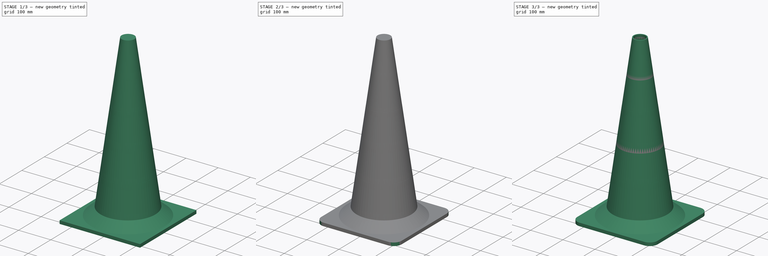
[diagram: build sequence overview — one tinted view per stage of 3, left to right]
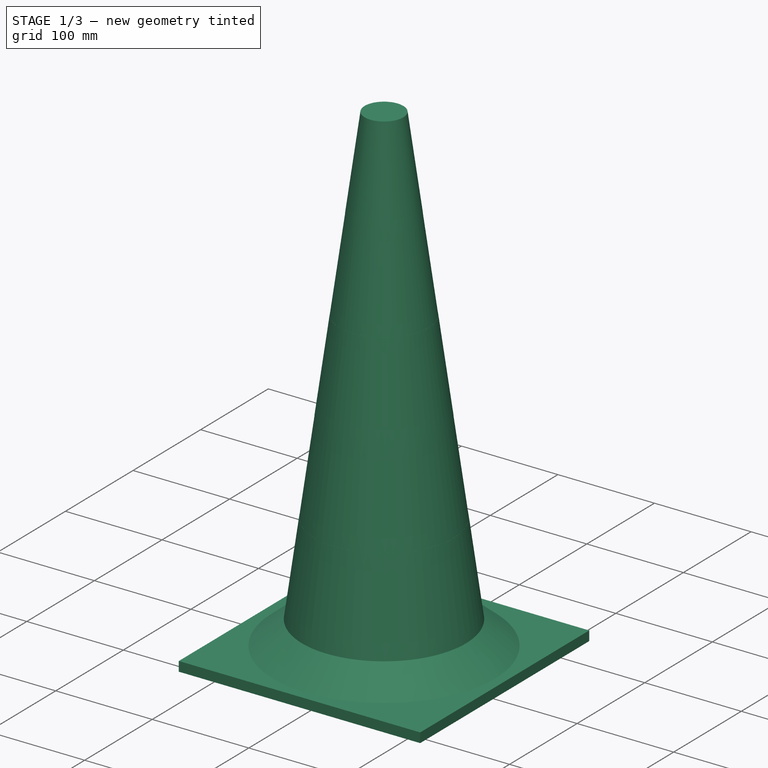
[diagram: stage 1 of 3 — iso view after this stage's code; geometry added in this stage tinted green]
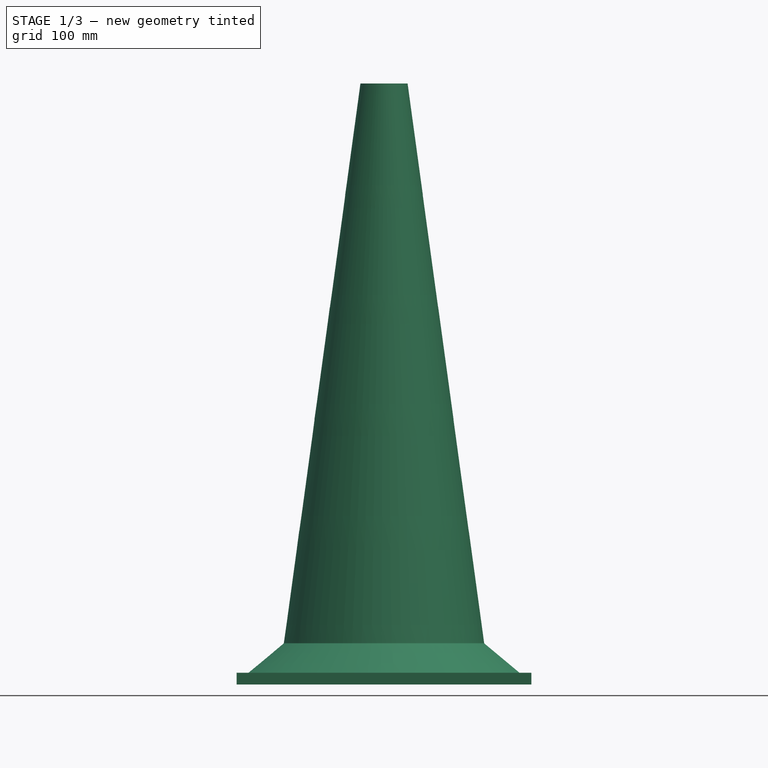
[diagram: stage 1 of 3 — front view after this stage's code; geometry added in this stage tinted green]
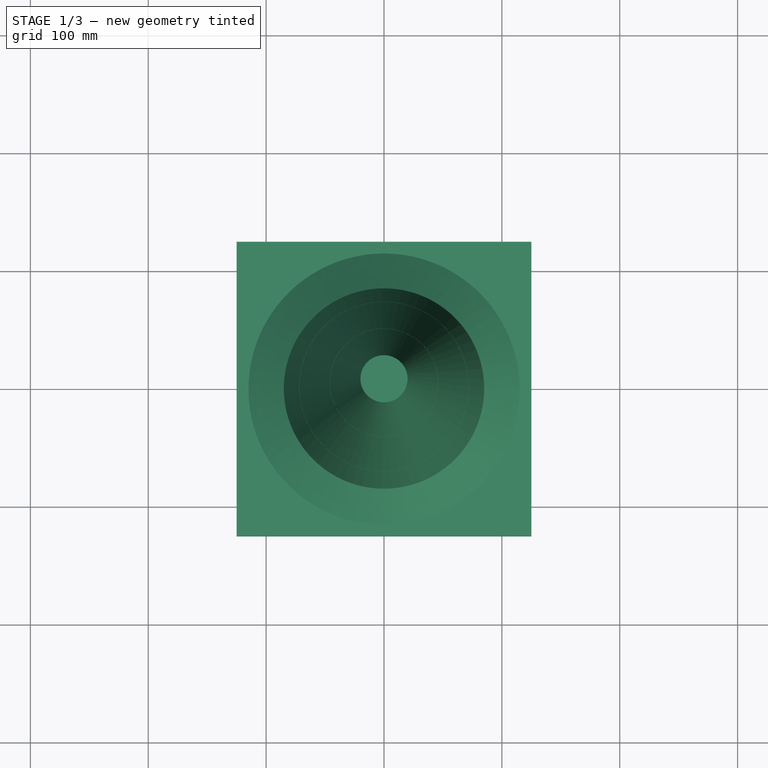
[diagram: stage 1 of 3 — top view after this stage's code; geometry added in this stage tinted green]
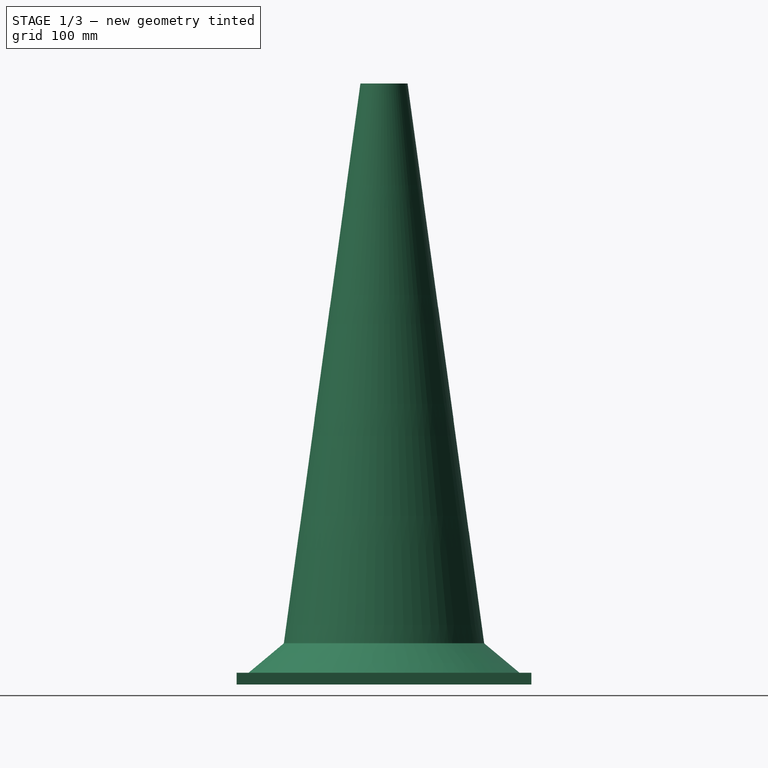
[diagram: stage 1 of 3 — right view after this stage's code; geometry added in this stage tinted green]
FCSTD DOCUMENT  (FreeCAD 1.0R39109 (Git))
Label: pylon
License: All rights reserved
LicenseURL: https://en.wikipedia.org/wiki/All_rights_reserved
objects: Sketcher::SketchObject×2, App::Part×2, PartDesign::Pad×1, PartDesign::Revolution×1, PartDesign::Fillet×1, PartDesign::Thickness×1, PartDesign::Body×1, Part::FeaturePython×1
note: 18 computed .brp shape members not serialized (recipe doc carries the construction recipe); baked Part::Feature solids carry a one-line shape summary decoded from their .brp

FEATURE [Sketcher::SketchObject] Sketch
  ArcFitTolerance = 1e-06
  AttachmentSupport = -> [XY_Plane]
  FullyConstrained = true
  MakeInternals = false
  MapMode = 5
  sketch-geometry (4):
    g0: LineSegment StartX=-125 StartY=125 StartZ=0 EndX=-125 EndY=-125 EndZ=0
    g1: LineSegment StartX=-125 StartY=-125 StartZ=0 EndX=125 EndY=-125 EndZ=0
    g2: LineSegment StartX=125 StartY=-125 StartZ=0 EndX=125 EndY=125 EndZ=0
    g3: LineSegment StartX=125 StartY=125 StartZ=0 EndX=-125 EndY=125 EndZ=0
  constraints (11):
    c: Coincident(g0,g1)
    c: Coincident(g1,g2)
    c: Coincident(g2,g3)
    c: Coincident(g3,g0)
    c: Vertical(g0)
    c: Vertical(g2)
    c: Horizontal(g1)
    c: Horizontal(g3)
    c: Symmetric(g0,g1,g-1)
    c: DistanceX(g3,g3) = 250
    c: Equal(g3,g0)
FEATURE [PartDesign::Pad] Pad
  Direction = (0,0,1)
  Length = 10
  Length2 = 10
  Profile = -> Sketch
  ReferenceAxis = -> Sketch [N_Axis]
  Refine = true
  Reversed = true
  Suppressed = false
  Type = 0
FEATURE [Sketcher::SketchObject] Sketch001
  ArcFitTolerance = 1e-06
  AttachmentSupport = -> [XZ_Plane]
  FullyConstrained = true
  MakeInternals = false
  MapMode = 5
  Placement = pos=(0,0,0) rot=(1,0,0;1.5708rad)
  sketch-geometry (13):
    g0: LineSegment StartX=115 StartY=0 StartZ=0 EndX=0 EndY=0 EndZ=0
    g1: LineSegment StartX=0 StartY=0 StartZ=0 EndX=0 EndY=500 EndZ=0
    g2: LineSegment StartX=0 StartY=500 StartZ=0 EndX=20 EndY=500 EndZ=0
    g3: LineSegment StartX=20 StartY=500 StartZ=0 EndX=33 EndY=405 EndZ=0
    g4: LineSegment StartX=33 StartY=405 StartZ=0 EndX=32.9009 EndY=404.986 EndZ=0
    g5: LineSegment StartX=32.9009 StartY=404.986 StartZ=0 EndX=45.9009 EndY=309.986 EndZ=0
    g6: LineSegment StartX=45.9009 StartY=309.986 StartZ=0 EndX=46 EndY=310 EndZ=0
    g7: LineSegment StartX=46 StartY=310 StartZ=0 EndX=59 EndY=215 EndZ=0
    g8: LineSegment StartX=59 StartY=215 StartZ=0 EndX=58.9009 EndY=214.986 EndZ=0
    g9: LineSegment StartX=58.9009 StartY=214.986 StartZ=0 EndX=71.9009 EndY=119.986 EndZ=0
    g10: LineSegment StartX=71.9009 StartY=119.986 StartZ=0 EndX=72 EndY=120 EndZ=0
    g11: LineSegment StartX=72 StartY=120 StartZ=0 EndX=85 EndY=25 EndZ=0
    g12: LineSegment StartX=85 StartY=25 StartZ=0 EndX=115 EndY=0 EndZ=0
  constraints (38):
    c: PointOnObject(g0,g-1)
    c: Coincident(g0,g-1)
    c: Coincident(g0,g1)
    c: Vertical(g1)
    c: Coincident(g1,g2)
    c: Coincident(g2,g3)
    c: Coincident(g3,g4)
    c: Coincident(g4,g5)
    c: Coincident(g5,g6)
    c: Coincident(g6,g7)
    c: Coincident(g7,g8)
    c: Coincident(g8,g9)
    c: Coincident(g9,g10)
    c: Coincident(g10,g11)
    c: Equal(g3,g5)
    c: Equal(g5,g7)
    c: Equal(g7,g9)
    c: Perpendicular(g4,g3)
    c: Perpendicular(g7,g6)
    c: Perpendicular(g6,g5)
    c: Perpendicular(g5,g4)
    c: Perpendicular(g9,g8)
    c: Perpendicular(g8,g7)
    c: Perpendicular(g9,g10)
    c: Perpendicular(g10,g11)
    c: Horizontal(g2)
    c: Equal(g4,g6)
    c: Equal(g6,g8)
    c: Equal(g8,g10)
    c: DistanceX(g0,g0) = 115
    c: DistanceY(g1,g1) = 500
    c: Distance(g6) = 0.1
    c: DistanceX(g2,g2) = 20
    c: Coincident(g12,g11)
    c: Coincident(g12,g0)
    c: DistanceY(g11) = 25
    c: DistanceX(g12,g12) = 30
    c: Equal(g9,g11)
FEATURE [PartDesign::Revolution] Revolution
  Angle = 360
  Angle2 = 60
  Axis = (0,2e-16,1)
  Base = (0,0,0)
  BaseFeature = -> Pad
  Profile = -> Sketch001
  ReferenceAxis = -> Sketch001 [V_Axis]
  Refine = true
  Reversed = true
  Suppressed = false
  Type = 0
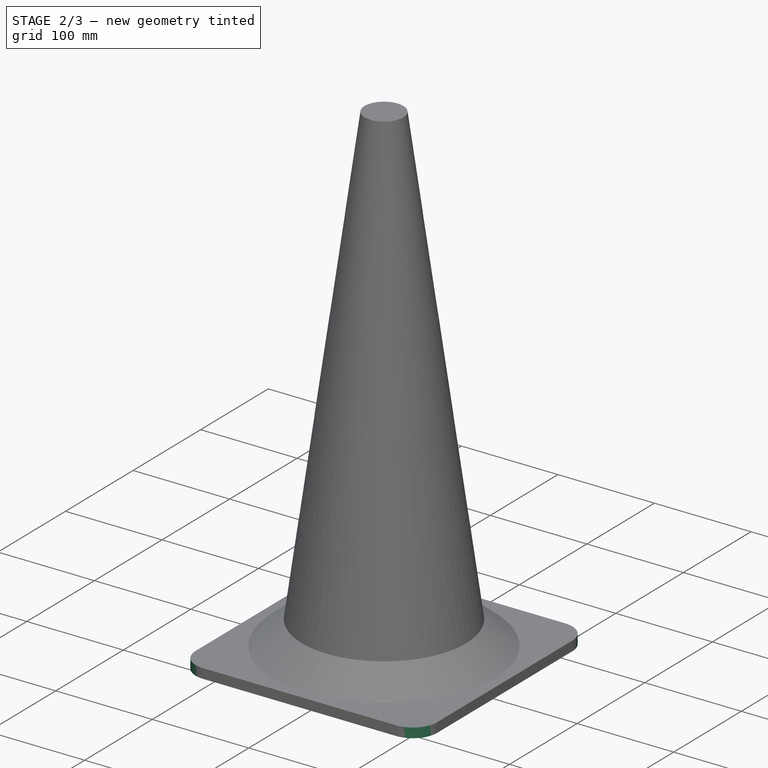
[diagram: stage 2 of 3 — iso view after this stage's code; geometry added in this stage tinted green]
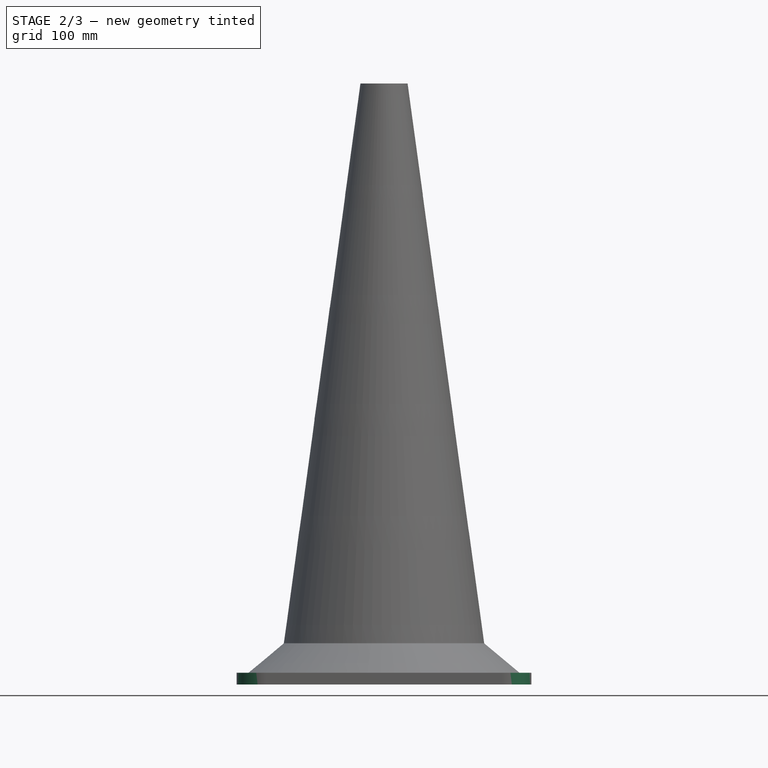
[diagram: stage 2 of 3 — front view after this stage's code; geometry added in this stage tinted green]
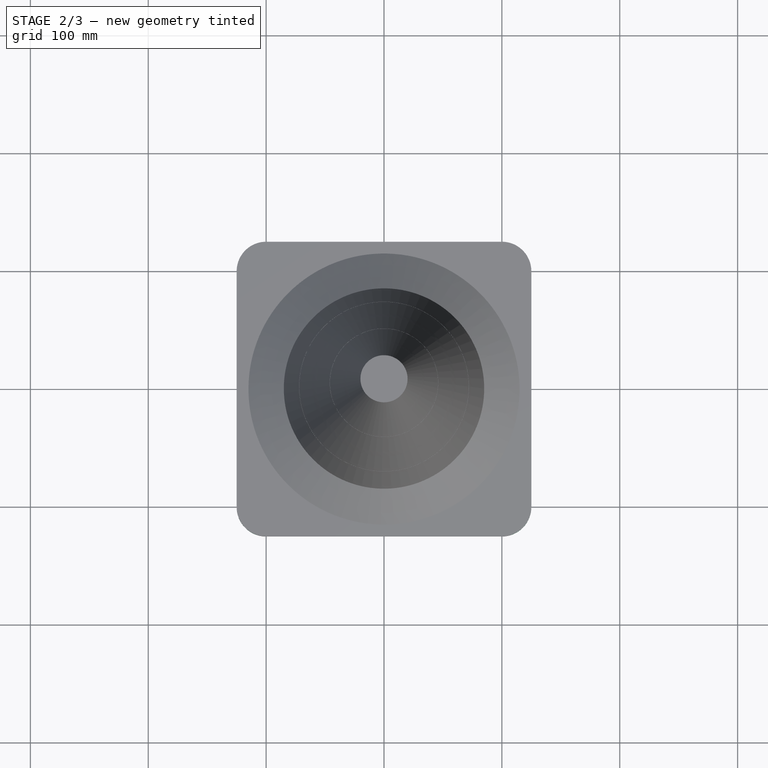
[diagram: stage 2 of 3 — top view after this stage's code; geometry added in this stage tinted green]
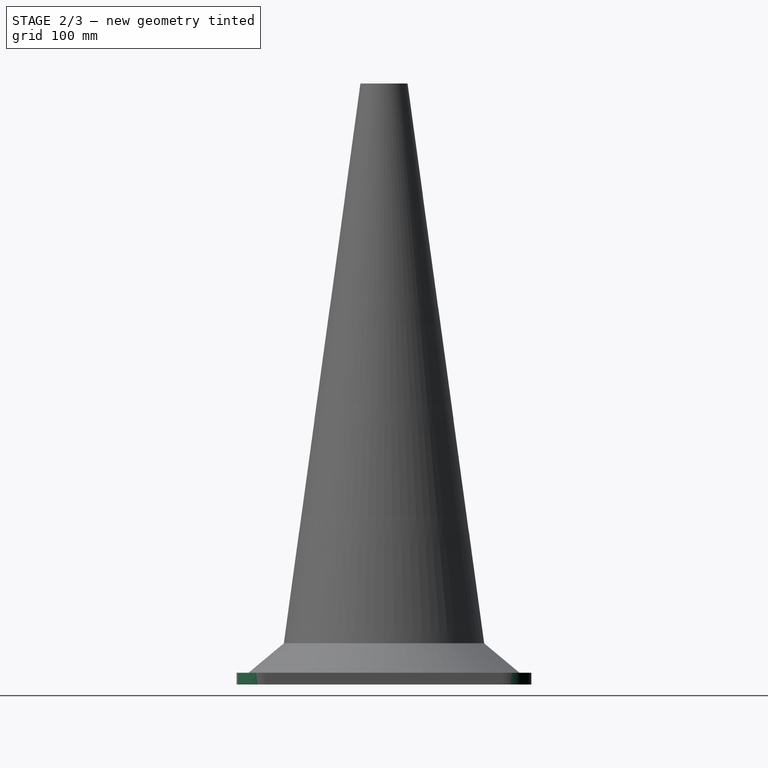
[diagram: stage 2 of 3 — right view after this stage's code; geometry added in this stage tinted green]
FEATURE [PartDesign::Fillet] Fillet
  Base = -> Revolution [Edge26,Edge29,Edge31,Edge27]
  BaseFeature = -> Revolution
  Radius = 25
  Refine = true
  SupportTransform = false
  Suppressed = false
  UseAllEdges = false
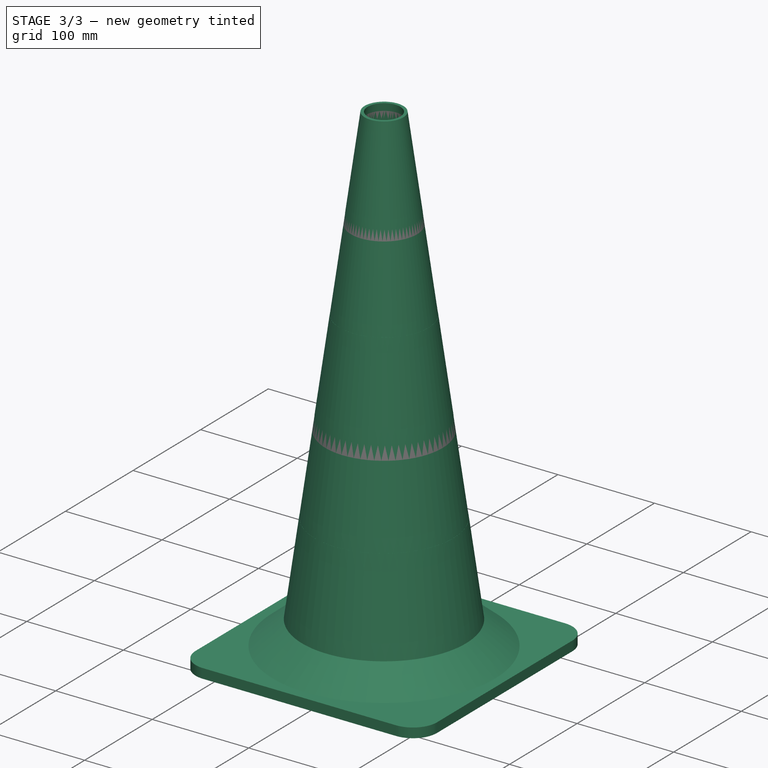
[diagram: stage 3 of 3 — iso view after this stage's code; geometry added in this stage tinted green]
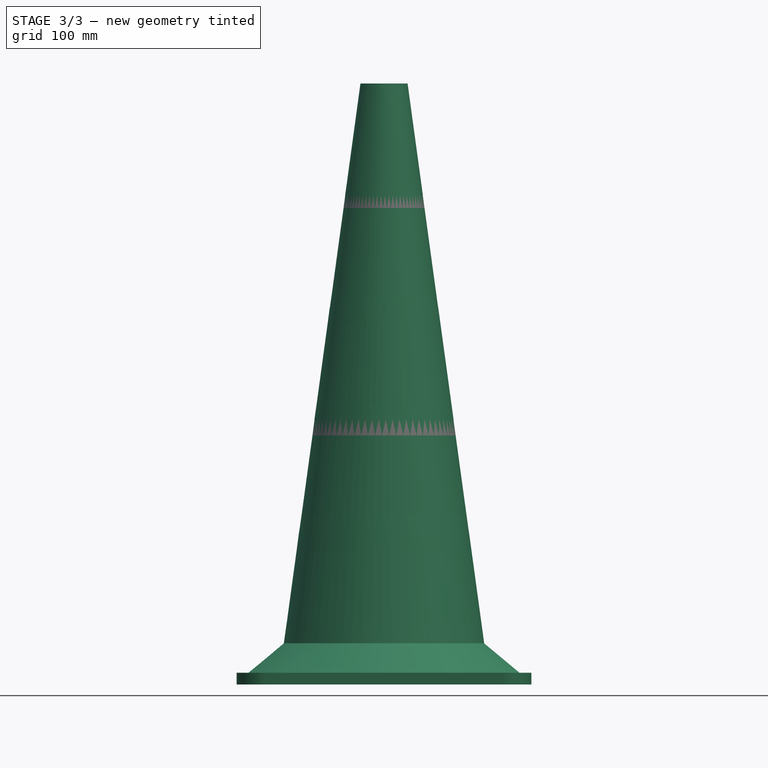
[diagram: stage 3 of 3 — front view after this stage's code; geometry added in this stage tinted green]
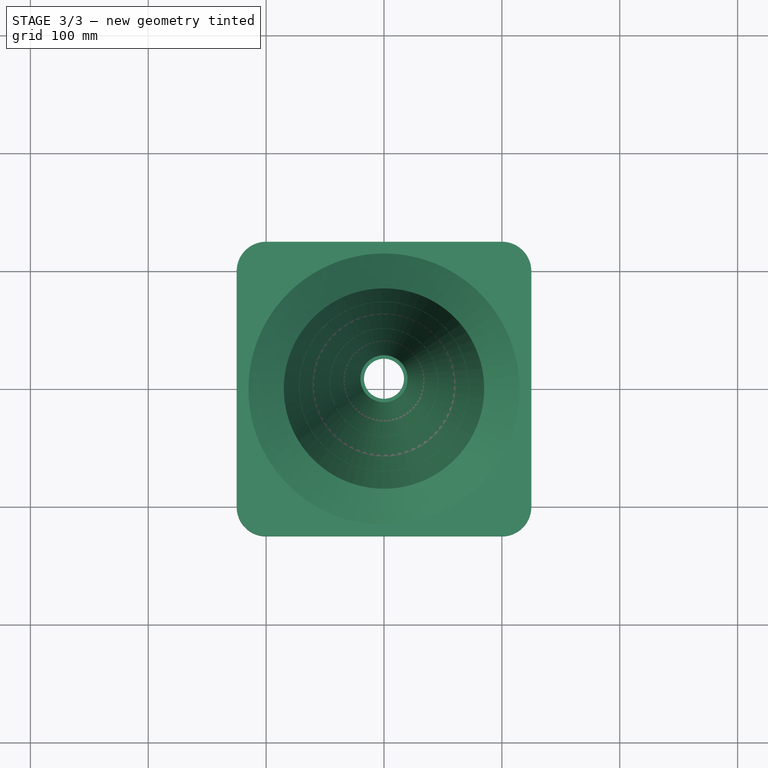
[diagram: stage 3 of 3 — top view after this stage's code; geometry added in this stage tinted green]
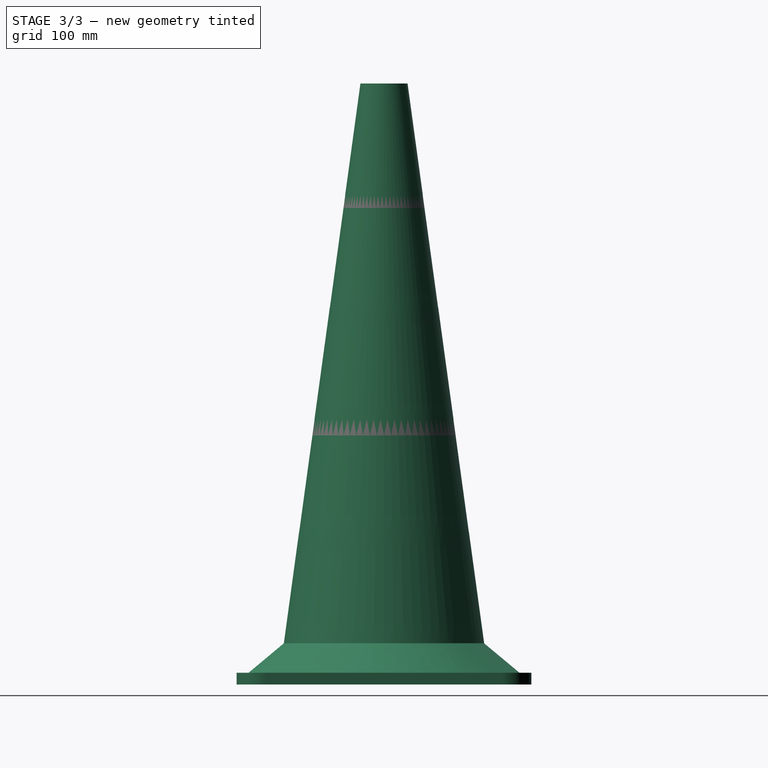
[diagram: stage 3 of 3 — right view after this stage's code; geometry added in this stage tinted green]
FEATURE [PartDesign::Thickness] Thickness
  Base = -> Fillet [Face11,Face21]
  BaseFeature = -> Fillet
  Intersection = false
  Join = 1
  Mode = 0
  Refine = true
  Reversed = true
  SupportTransform = false
  Suppressed = false
  Value = 3
FEATURE [PartDesign::Body] Body
  AllowCompound = false
  Group = -> [Sketch,Pad,Sketch001,Revolution,Fillet,Thickness]
  Origin = -> Origin
  Placement = pos=(0,0,10) rot=(0,0,1;0rad)
  Tip = -> Thickness
FEATURE [App::Part] Part
  Group = -> [Body]
  Origin = -> Origin001
  Placement = pos=(0,0,10) rot=(0,0,1;0rad)
FEATURE [Part::FeaturePython] Clone  label="pylon_clone"  # Draft clone (typed FeaturePython)
  AttacherType = Attacher::AttachEngine3D
  Fuse = false
  Objects = -> [Part]
  Scale = (1,1,1)
FEATURE [App::Part] Part001  label="pylon"
  Group = -> [Clone]
  Origin = -> Origin002
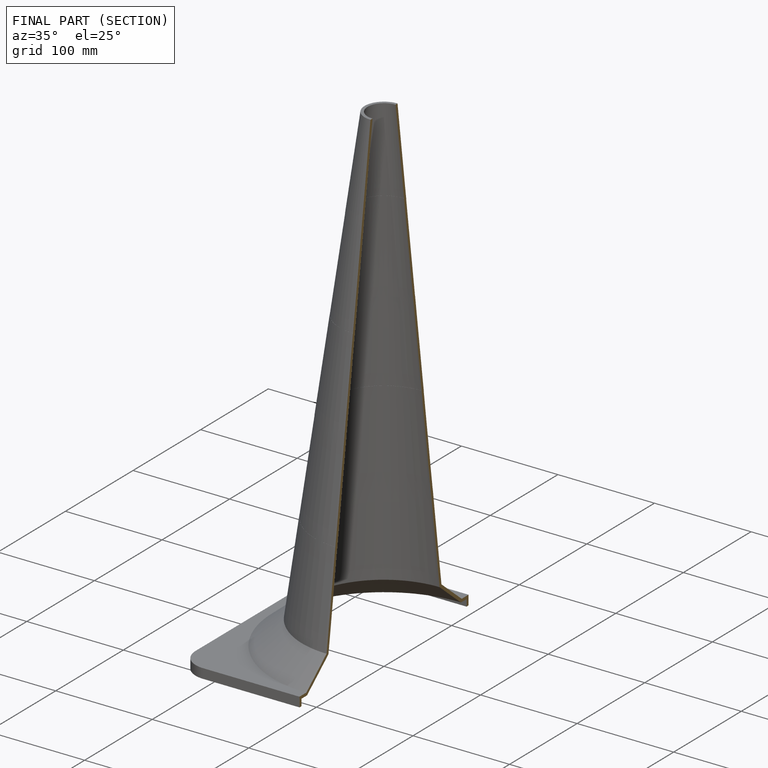
[diagram: finished part — half-section view (interior)]
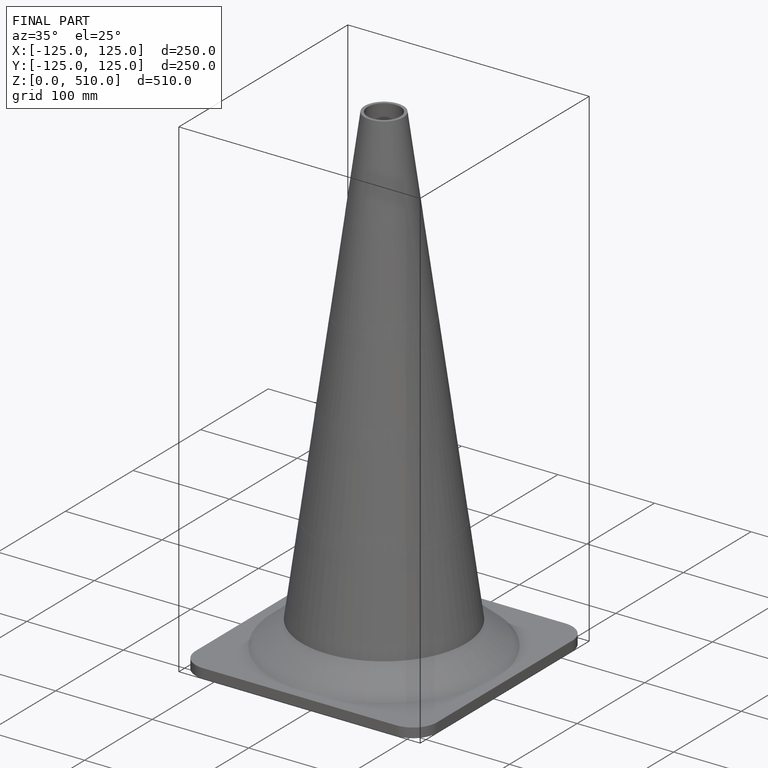
[diagram: finished part — iso view with bounding-box wireframe]
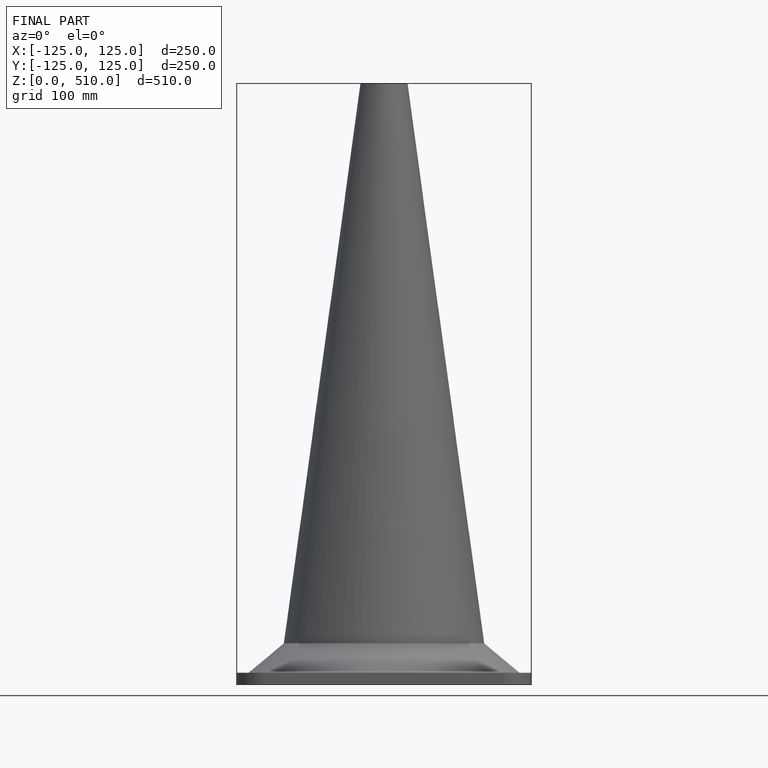
[diagram: finished part — front view with bounding-box wireframe]
